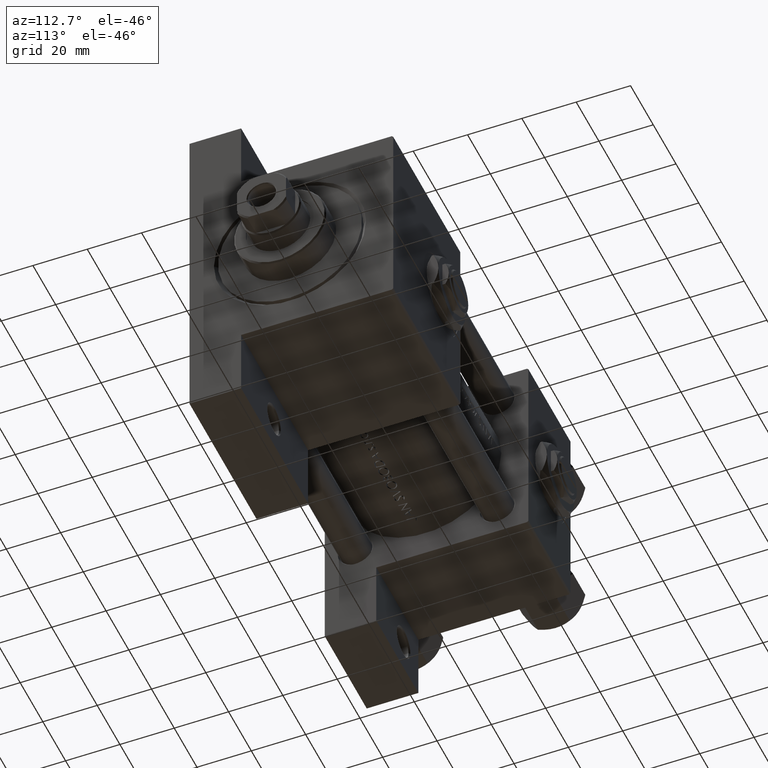
[diagram: clean part render]
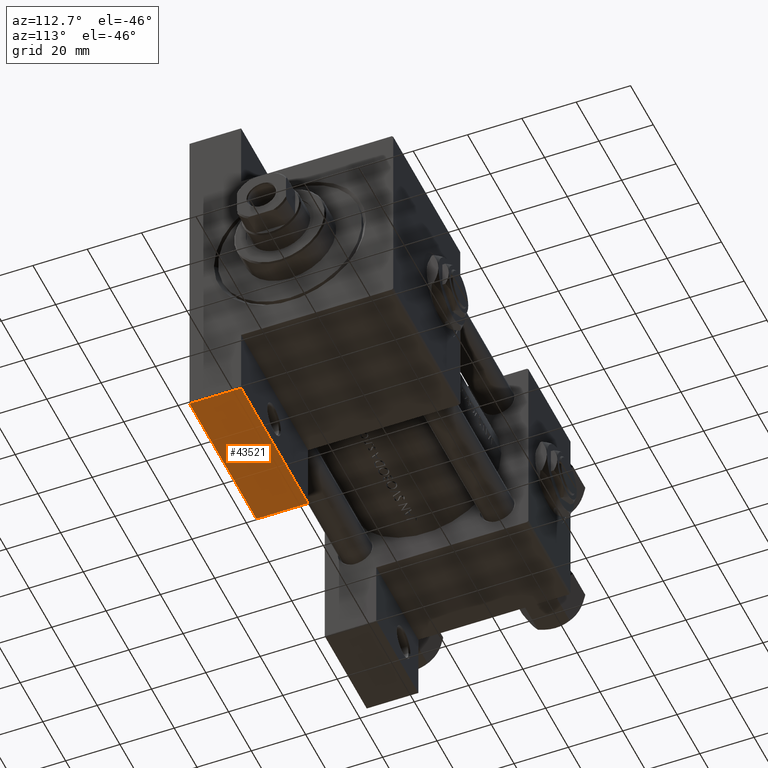
[diagram: same view with one face highlighted and labeled with its STEP entity id]
A machine part, auxiliary view. The second image highlights one B-rep face of the part: STEP entity #43521.
In plain terms, the highlighted planar face has unit normal (0, 0, -1).
Its self-contained STEP definition (entity closure, byte-faithful):
#4025 = FACE_OUTER_BOUND ( 'NONE', #26123, .T. ) ;
#4125 = CARTESIAN_POINT ( 'NONE',  ( 97.00000000000000000, 63.50000000000000000, -37.50000000000000000 ) ) ;
#4757 = DIRECTION ( 'NONE',  ( -0.000000000000000000, 1.000000000000000000, 0.000000000000000000 ) ) ;
#6041 = LINE ( 'NONE', #36265, #48184 ) ;
#8480 = PLANE ( 'NONE',  #35691 ) ;
#8561 = EDGE_CURVE ( 'NONE', #30841, #26183, #16023, .T. ) ;
#8950 = ORIENTED_EDGE ( 'NONE', *, *, #8561, .T. ) ;
#10442 = VECTOR ( 'NONE', #41551, 1000.000000000000000 ) ;
#11117 = CARTESIAN_POINT ( 'NONE',  ( 97.00000000000000000, 63.50000000000000000, -18.50000000000000000 ) ) ;
#12682 = CARTESIAN_POINT ( 'NONE',  ( 97.00000000000000000, 63.50000000000000000, -18.50000000000000000 ) ) ;
#12894 = ORIENTED_EDGE ( 'NONE', *, *, #34391, .F. ) ;
#14278 = VECTOR ( 'NONE', #27440, 1000.000000000000000 ) ;
#15275 = EDGE_CURVE ( 'NONE', #26782, #26183, #41788, .T. ) ;
#16023 = LINE ( 'NONE', #18833, #14278 ) ;
#16392 = VECTOR ( 'NONE', #39204, 1000.000000000000000 ) ;
#18770 = CARTESIAN_POINT ( 'NONE',  ( 156.0000000000000000, 63.50000000000000000, -37.50000000000000000 ) ) ;
#18833 = CARTESIAN_POINT ( 'NONE',  ( 156.0000000000000000, 63.50000000000000000, -18.50000000000000000 ) ) ;
#19288 = VERTEX_POINT ( 'NONE', #11117 ) ;
#22940 = ORIENTED_EDGE ( 'NONE', *, *, #15275, .F. ) ;
#23742 = CARTESIAN_POINT ( 'NONE',  ( 156.0000000000000000, 63.50000000000000000, -18.50000000000000000 ) ) ;
#26123 = EDGE_LOOP ( 'NONE', ( #22940, #12894, #30065, #8950 ) ) ;
#26183 = VERTEX_POINT ( 'NONE', #18770 ) ;
#26782 = VERTEX_POINT ( 'NONE', #33524 ) ;
#26811 = DIRECTION ( 'NONE',  ( 0.000000000000000000, -0.000000000000000000, 1.000000000000000000 ) ) ;
#27440 = DIRECTION ( 'NONE',  ( 0.000000000000000000, 0.000000000000000000, -1.000000000000000000 ) ) ;
#28280 = LINE ( 'NONE', #12682, #16392 ) ;
#29538 = DIRECTION ( 'NONE',  ( 0.000000000000000000, 0.000000000000000000, -1.000000000000000000 ) ) ;
#29922 = EDGE_CURVE ( 'NONE', #19288, #30841, #28280, .T. ) ;
#30065 = ORIENTED_EDGE ( 'NONE', *, *, #29922, .T. ) ;
#30841 = VERTEX_POINT ( 'NONE', #23742 ) ;
#33524 = CARTESIAN_POINT ( 'NONE',  ( 97.00000000000000000, 63.50000000000000000, -37.50000000000000000 ) ) ;
#34391 = EDGE_CURVE ( 'NONE', #19288, #26782, #6041, .T. ) ;
#35691 = AXIS2_PLACEMENT_3D ( 'NONE', #46640, #4757, #26811 ) ;
#36265 = CARTESIAN_POINT ( 'NONE',  ( 97.00000000000000000, 63.50000000000000000, -18.50000000000000000 ) ) ;
#39204 = DIRECTION ( 'NONE',  ( 1.000000000000000000, 0.000000000000000000, 0.000000000000000000 ) ) ;
#41551 = DIRECTION ( 'NONE',  ( 1.000000000000000000, 0.000000000000000000, 0.000000000000000000 ) ) ;
#41788 = LINE ( 'NONE', #4125, #10442 ) ;
#43521 = ADVANCED_FACE ( 'NONE', ( #4025 ), #8480, .T. ) ;
#46640 = CARTESIAN_POINT ( 'NONE',  ( 97.00000000000000000, 63.50000000000000000, -18.50000000000000000 ) ) ;
#48184 = VECTOR ( 'NONE', #29538, 1000.000000000000000 ) ;